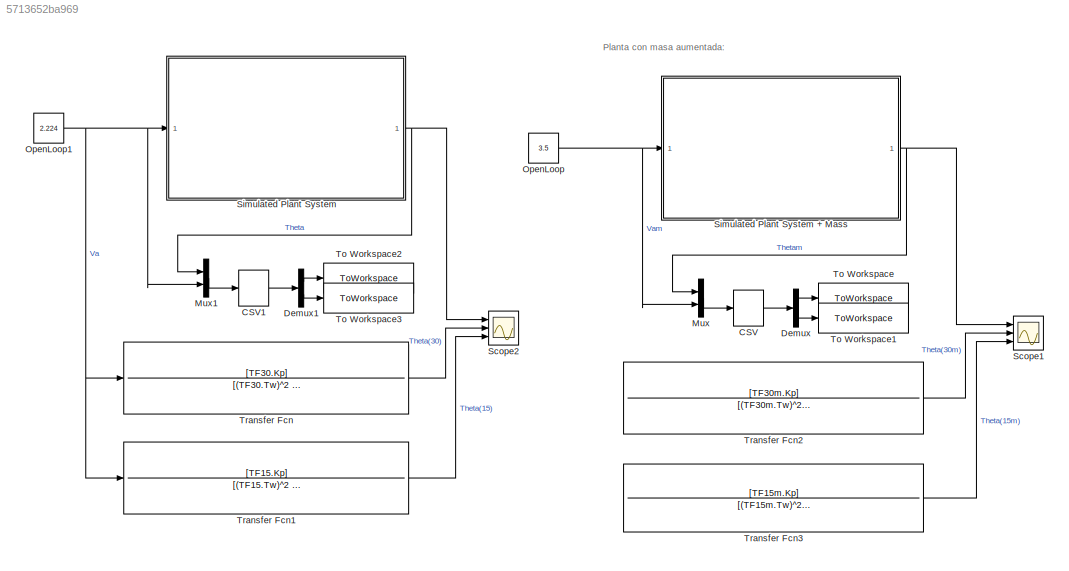
MODEL slx_5713652ba969
KIND model
CONFIG AbsTol = auto
CONFIG EnableMultiTasking = off
CONFIG FixedStep = 1e-4
CONFIG MaxStep = auto
CONFIG MinStep = auto
CONFIG RelTol = 1e-3
CONFIG SampleTimeConstraint = Unconstrained
CONFIG Solver = ode4
CONFIG SolverName = ode4
CONFIG StartTime = 0.0
CONFIG StopTime = inf
BLOCK [ManualSwitch] CSV
BLOCK [ManualSwitch] CSV1
BLOCK [Demux] Demux
  DisplayOption = bar
  Outputs = 2
  Ports = [1, 2]
BLOCK [Demux] Demux1
  DisplayOption = bar
  Outputs = 2
  Ports = [1, 2]
BLOCK [Mux] Mux
  DisplayOption = bar
  Inputs = 2
  Ports = [2, 1]
BLOCK [Mux] Mux1
  DisplayOption = bar
  Inputs = 2
  Ports = [2, 1]
BLOCK [Constant] OpenLoop
  Value = 3.5
BLOCK [Constant] OpenLoop1
  Value = 2.224
BLOCK [Scope] Scope1
  Floating = off
  NumInputPorts = 3
  Ports = [3]
  ScopeSpecificationString = Simulink.scopes.TimeScopeBlockCfg('CurrentConfiguration', extmgr.ConfigurationSet(extmgr.Configuration('Core','General UI',true),extmgr.Configuration('Core','Source UI',true),extmgr.Configuration('Sources','WiredSimulink',true,'DataLoggingVariableName','ScopeData1'),extmgr.Configuration('Visuals','Time Domain',true),extmgr.Configuration('Tools','Plot Navigation',true),extmgr.Configuration('Tools',...<+40ch>
BLOCK [Scope] Scope2
  Floating = off
  NumInputPorts = 3
  Ports = [3]
  ScopeSpecificationString = Simulink.scopes.TimeScopeBlockCfg('CurrentConfiguration', extmgr.ConfigurationSet(extmgr.Configuration('Core','General UI',true),extmgr.Configuration('Core','Source UI',true),extmgr.Configuration('Sources','WiredSimulink',true,'DataLoggingVariableName','ScopeData1'),extmgr.Configuration('Visuals','Time Domain',true,'SerializedDisplays',{struct('MinYLimReal','-11.73888','MaxYLimReal','-11.27622','Y...<+1401ch>
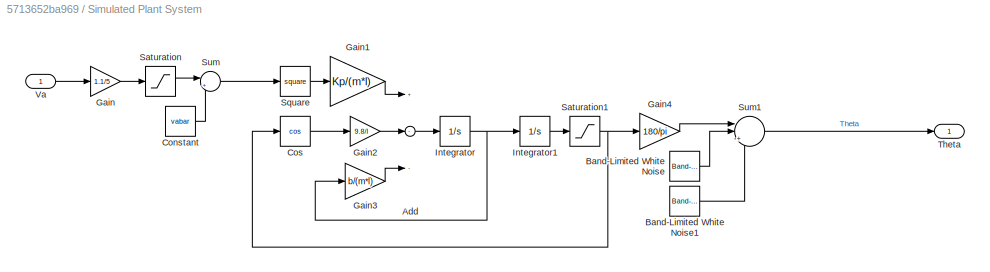
BLOCK [SubSystem] Simulated Plant System
  Ports = [1, 1]
  RequestExecContextInheritance = off
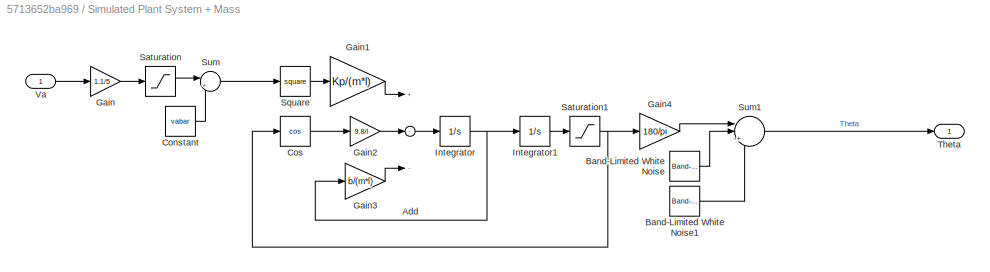
BLOCK [SubSystem] Simulated Plant System + Mass
  Ports = [1, 1]
  RequestExecContextInheritance = off
BLOCK [Sum] Simulated Plant System + Mass/Add
  InputSameDT = off
  Inputs = +--
  OutDataTypeStr = Inherit: Inherit via internal rule
  Ports = [3, 1]
  SaturateOnIntegerOverflow = off
BLOCK [Reference] Simulated Plant System + Mass/Band-Limited White Noise  REF=simulink/Sources/Band-Limited
White Noise
  Ports = [0, 1]
  SourceBlock = simulink/Sources/Band-Limited\nWhite Noise
  SourceProductBaseCode = SL
  SourceProductName = Simulink
  SourceType = Band-Limited White Noise.
BLOCK [Reference] Simulated Plant System + Mass/Band-Limited White Noise1  REF=simulink/Sources/Band-Limited
White Noise
  Ports = [0, 1]
  SourceBlock = simulink/Sources/Band-Limited\nWhite Noise
  SourceProductBaseCode = SL
  SourceProductName = Simulink
  SourceType = Band-Limited White Noise.
BLOCK [Constant] Simulated Plant System + Mass/Constant
  Value = vabar
BLOCK [Trigonometry] Simulated Plant System + Mass/Cos
  Operator = cos
  Ports = [1, 1]
BLOCK [Gain] Simulated Plant System + Mass/Gain
  Gain = 1.1/5
  OutDataTypeStr = Inherit: Inherit via internal rule
  ParamDataTypeStr = Inherit: Inherit via internal rule
  SaturateOnIntegerOverflow = off
BLOCK [Gain] Simulated Plant System + Mass/Gain1
  Gain = Kp/(m*l)
  OutDataTypeStr = Inherit: Inherit via internal rule
  ParamDataTypeStr = Inherit: Inherit via internal rule
  SaturateOnIntegerOverflow = off
BLOCK [Gain] Simulated Plant System + Mass/Gain2
  Gain = 9.8/l
  OutDataTypeStr = Inherit: Inherit via internal rule
  ParamDataTypeStr = Inherit: Inherit via internal rule
  SaturateOnIntegerOverflow = off
BLOCK [Gain] Simulated Plant System + Mass/Gain3
  Gain = b/(m*l)
  OutDataTypeStr = Inherit: Inherit via internal rule
  ParamDataTypeStr = Inherit: Inherit via internal rule
  SaturateOnIntegerOverflow = off
BLOCK [Gain] Simulated Plant System + Mass/Gain4
  Gain = 180/pi
  OutDataTypeStr = Inherit: Inherit via internal rule
  ParamDataTypeStr = Inherit: Inherit via internal rule
  SaturateOnIntegerOverflow = off
BLOCK [Integrator] Simulated Plant System + Mass/Integrator
  Ports = [1, 1]
BLOCK [Integrator] Simulated Plant System + Mass/Integrator1
  InitialCondition = deg2rad(-45)
  Ports = [1, 1]
BLOCK [Saturate] Simulated Plant System + Mass/Saturation
  InputPortMap = u0
  LowerLimit = 0
  Ports = [1, 1]
  UpperLimit = 5
BLOCK [Saturate] Simulated Plant System + Mass/Saturation1
  InputPortMap = u0
  LowerLimit = deg2rad(-45)
  Ports = [1, 1]
  UpperLimit = deg2rad(90)
BLOCK [Math] Simulated Plant System + Mass/Square
  Operator = square
  Ports = [1, 1]
BLOCK [Sum] Simulated Plant System + Mass/Sum
  IconShape = round
  InputSameDT = off
  Inputs = |++
  OutDataTypeStr = Inherit: Inherit via internal rule
  Ports = [2, 1]
  SaturateOnIntegerOverflow = off
BLOCK [Sum] Simulated Plant System + Mass/Sum1
  IconShape = round
  InputSameDT = off
  Inputs = ||+++
  OutDataTypeStr = Inherit: Inherit via internal rule
  Ports = [3, 1]
  SaturateOnIntegerOverflow = off
BLOCK [Outport] Simulated Plant System + Mass/Theta
  IconDisplay = Port number
  VectorParamsAs1DForOutWhenUnconnected = on
BLOCK [Inport] Simulated Plant System + Mass/Va
  IconDisplay = Port number
BLOCK [Sum] Simulated Plant System/Add
  InputSameDT = off
  Inputs = +--
  OutDataTypeStr = Inherit: Inherit via internal rule
  Ports = [3, 1]
  SaturateOnIntegerOverflow = off
BLOCK [Reference] Simulated Plant System/Band-Limited White Noise  REF=simulink/Sources/Band-Limited
White Noise
  Ports = [0, 1]
  SourceBlock = simulink/Sources/Band-Limited\nWhite Noise
  SourceProductBaseCode = SL
  SourceProductName = Simulink
  SourceType = Band-Limited White Noise.
BLOCK [Reference] Simulated Plant System/Band-Limited White Noise1  REF=simulink/Sources/Band-Limited
White Noise
  Ports = [0, 1]
  SourceBlock = simulink/Sources/Band-Limited\nWhite Noise
  SourceProductBaseCode = SL
  SourceProductName = Simulink
  SourceType = Band-Limited White Noise.
BLOCK [Constant] Simulated Plant System/Constant
  Value = vabar
BLOCK [Trigonometry] Simulated Plant System/Cos
  Operator = cos
  Ports = [1, 1]
BLOCK [Gain] Simulated Plant System/Gain
  Gain = 1.1/5
  OutDataTypeStr = Inherit: Inherit via internal rule
  ParamDataTypeStr = Inherit: Inherit via internal rule
  SaturateOnIntegerOverflow = off
BLOCK [Gain] Simulated Plant System/Gain1
  Gain = Kp/(m*l)
  OutDataTypeStr = Inherit: Inherit via internal rule
  ParamDataTypeStr = Inherit: Inherit via internal rule
  SaturateOnIntegerOverflow = off
BLOCK [Gain] Simulated Plant System/Gain2
  Gain = 9.8/l
  OutDataTypeStr = Inherit: Inherit via internal rule
  ParamDataTypeStr = Inherit: Inherit via internal rule
  SaturateOnIntegerOverflow = off
BLOCK [Gain] Simulated Plant System/Gain3
  Gain = b/(m*l)
  OutDataTypeStr = Inherit: Inherit via internal rule
  ParamDataTypeStr = Inherit: Inherit via internal rule
  SaturateOnIntegerOverflow = off
BLOCK [Gain] Simulated Plant System/Gain4
  Gain = 180/pi
  OutDataTypeStr = Inherit: Inherit via internal rule
  ParamDataTypeStr = Inherit: Inherit via internal rule
  SaturateOnIntegerOverflow = off
BLOCK [Integrator] Simulated Plant System/Integrator
  Ports = [1, 1]
BLOCK [Integrator] Simulated Plant System/Integrator1
  InitialCondition = deg2rad(-45)
  Ports = [1, 1]
BLOCK [Saturate] Simulated Plant System/Saturation
  InputPortMap = u0
  LowerLimit = 0
  Ports = [1, 1]
  UpperLimit = 5
BLOCK [Saturate] Simulated Plant System/Saturation1
  InputPortMap = u0
  LowerLimit = deg2rad(-45)
  Ports = [1, 1]
  UpperLimit = deg2rad(90)
BLOCK [Math] Simulated Plant System/Square
  Operator = square
  Ports = [1, 1]
BLOCK [Sum] Simulated Plant System/Sum
  IconShape = round
  InputSameDT = off
  Inputs = |++
  OutDataTypeStr = Inherit: Inherit via internal rule
  Ports = [2, 1]
  SaturateOnIntegerOverflow = off
BLOCK [Sum] Simulated Plant System/Sum1
  IconShape = round
  InputSameDT = off
  Inputs = ||+++
  OutDataTypeStr = Inherit: Inherit via internal rule
  Ports = [3, 1]
  SaturateOnIntegerOverflow = off
BLOCK [Outport] Simulated Plant System/Theta
  IconDisplay = Port number
  VectorParamsAs1DForOutWhenUnconnected = on
BLOCK [Inport] Simulated Plant System/Va
  IconDisplay = Port number
BLOCK [ToWorkspace] To Workspace
  FixptAsFi = on
  MaxDataPoints = inf
  Ports = [1]
  SampleTime = 0.021
  Save2DSignal = 2-D array (concatenate along first dimension)
  VariableName = Thetam
BLOCK [ToWorkspace] To Workspace1
  FixptAsFi = on
  MaxDataPoints = inf
  Ports = [1]
  SampleTime = 0.021
  Save2DSignal = 2-D array (concatenate along first dimension)
  VariableName = OpenLoopm
BLOCK [ToWorkspace] To Workspace2
  FixptAsFi = on
  MaxDataPoints = inf
  Ports = [1]
  SampleTime = 0.021
  Save2DSignal = 2-D array (concatenate along first dimension)
  VariableName = Theta
BLOCK [ToWorkspace] To Workspace3
  FixptAsFi = on
  MaxDataPoints = inf
  Ports = [1]
  SampleTime = 0.021
  Save2DSignal = 2-D array (concatenate along first dimension)
  VariableName = OpenLoop
BLOCK [TransferFcn] Transfer Fcn
  Denominator = [(TF30.Tw)^2 2*TF30.Tw*TF30.Zeta 1]
  Numerator = [TF30.Kp]
BLOCK [TransferFcn] Transfer Fcn1
  Denominator = [(TF15.Tw)^2 2*TF15.Tw*TF15.Zeta 1]
  Numerator = [TF15.Kp]
BLOCK [TransferFcn] Transfer Fcn2
  Denominator = [(TF30m.Tw)^2 2*TF30m.Tw*TF30m.Zeta 1]
  Numerator = [TF30m.Kp]
BLOCK [TransferFcn] Transfer Fcn3
  Denominator = [(TF15m.Tw)^2 2*TF15m.Tw*TF15m.Zeta 1]
  Numerator = [TF15m.Kp]
ANNOTATION (root): Planta con masa aumentada:
LINE CSV1:1 -> Demux1:1
LINE CSV:1 -> Demux:1
LINE Demux1:1 -> To Workspace2:1
LINE Demux1:2 -> To Workspace3:1
LINE Demux:1 -> To Workspace:1
LINE Demux:2 -> To Workspace1:1
LINE Mux1:1 -> CSV1:1
LINE Mux:1 -> CSV:1
NET OpenLoop1:1 -> Mux1:2, Simulated Plant System:1, Transfer Fcn1:1, Transfer Fcn:1
NET OpenLoop:1 -> Mux:2, Simulated Plant System + Mass:1
LINE Simulated Plant System + Mass/Add:1 -> Simulated Plant System + Mass/Integrator:1
LINE Simulated Plant System + Mass/Band-Limited White Noise1:1 -> Simulated Plant System + Mass/Sum1:3
LINE Simulated Plant System + Mass/Band-Limited White Noise:1 -> Simulated Plant System + Mass/Sum1:2
LINE Simulated Plant System + Mass/Constant:1 -> Simulated Plant System + Mass/Sum:2
LINE Simulated Plant System + Mass/Cos:1 -> Simulated Plant System + Mass/Gain2:1
LINE Simulated Plant System + Mass/Gain1:1 -> Simulated Plant System + Mass/Add:1
LINE Simulated Plant System + Mass/Gain2:1 -> Simulated Plant System + Mass/Add:2
LINE Simulated Plant System + Mass/Gain3:1 -> Simulated Plant System + Mass/Add:3
LINE Simulated Plant System + Mass/Gain4:1 -> Simulated Plant System + Mass/Sum1:1
LINE Simulated Plant System + Mass/Gain:1 -> Simulated Plant System + Mass/Saturation:1
LINE Simulated Plant System + Mass/Integrator1:1 -> Simulated Plant System + Mass/Saturation1:1
NET Simulated Plant System + Mass/Integrator:1 -> Simulated Plant System + Mass/Gain3:1, Simulated Plant System + Mass/Integrator1:1
NET Simulated Plant System + Mass/Saturation1:1 -> Simulated Plant System + Mass/Cos:1, Simulated Plant System + Mass/Gain4:1
LINE Simulated Plant System + Mass/Saturation:1 -> Simulated Plant System + Mass/Sum:1
LINE Simulated Plant System + Mass/Square:1 -> Simulated Plant System + Mass/Gain1:1
LINE Simulated Plant System + Mass/Sum1:1 -> Simulated Plant System + Mass/Theta:1
LINE Simulated Plant System + Mass/Sum:1 -> Simulated Plant System + Mass/Square:1
LINE Simulated Plant System + Mass/Va:1 -> Simulated Plant System + Mass/Gain:1
NET Simulated Plant System + Mass:1 -> Mux:1, Scope1:1
LINE Simulated Plant System/Add:1 -> Simulated Plant System/Integrator:1
LINE Simulated Plant System/Band-Limited White Noise1:1 -> Simulated Plant System/Sum1:3
LINE Simulated Plant System/Band-Limited White Noise:1 -> Simulated Plant System/Sum1:2
LINE Simulated Plant System/Constant:1 -> Simulated Plant System/Sum:2
LINE Simulated Plant System/Cos:1 -> Simulated Plant System/Gain2:1
LINE Simulated Plant System/Gain1:1 -> Simulated Plant System/Add:1
LINE Simulated Plant System/Gain2:1 -> Simulated Plant System/Add:2
LINE Simulated Plant System/Gain3:1 -> Simulated Plant System/Add:3
LINE Simulated Plant System/Gain4:1 -> Simulated Plant System/Sum1:1
LINE Simulated Plant System/Gain:1 -> Simulated Plant System/Saturation:1
LINE Simulated Plant System/Integrator1:1 -> Simulated Plant System/Saturation1:1
NET Simulated Plant System/Integrator:1 -> Simulated Plant System/Gain3:1, Simulated Plant System/Integrator1:1
NET Simulated Plant System/Saturation1:1 -> Simulated Plant System/Cos:1, Simulated Plant System/Gain4:1
LINE Simulated Plant System/Saturation:1 -> Simulated Plant System/Sum:1
LINE Simulated Plant System/Square:1 -> Simulated Plant System/Gain1:1
LINE Simulated Plant System/Sum1:1 -> Simulated Plant System/Theta:1
LINE Simulated Plant System/Sum:1 -> Simulated Plant System/Square:1
LINE Simulated Plant System/Va:1 -> Simulated Plant System/Gain:1
NET Simulated Plant System:1 -> Mux1:1, Scope2:1
LINE Transfer Fcn1:1 -> Scope2:3
LINE Transfer Fcn2:1 -> Scope1:2
LINE Transfer Fcn3:1 -> Scope1:3
LINE Transfer Fcn:1 -> Scope2:2
note: NET lines group one-source signal fan-out (src -> all destinations, sorted); 1:1 wires keep LINE
